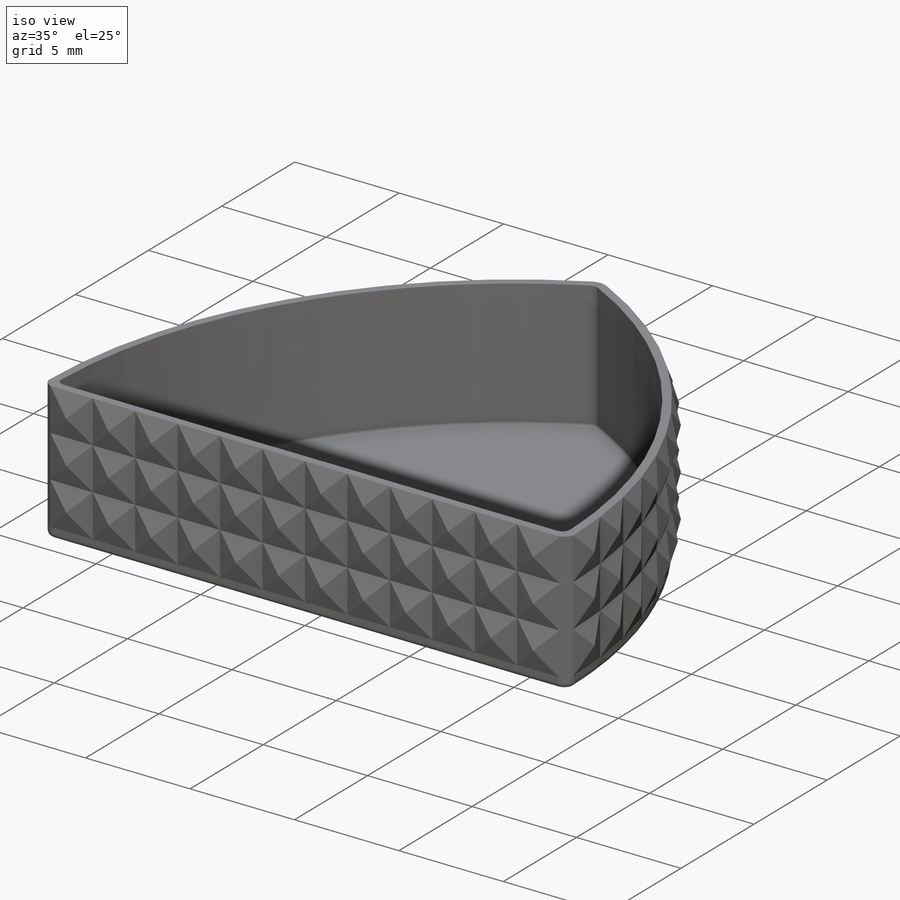
[diagram: iso view]
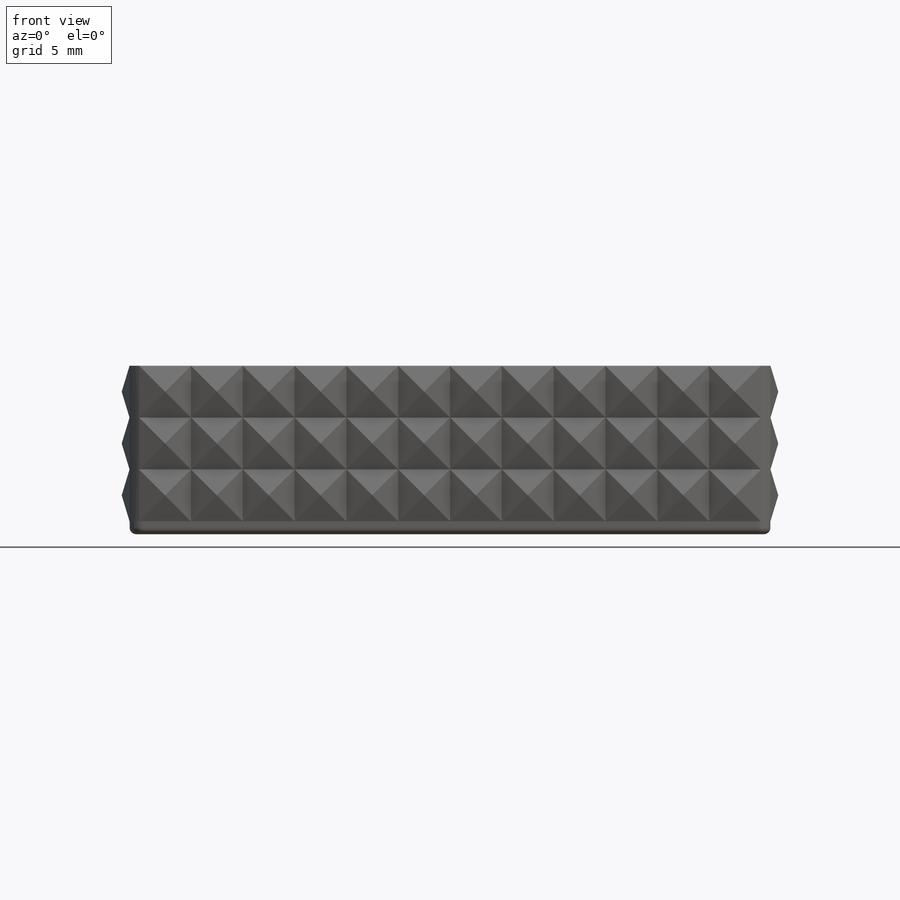
[diagram: front view]
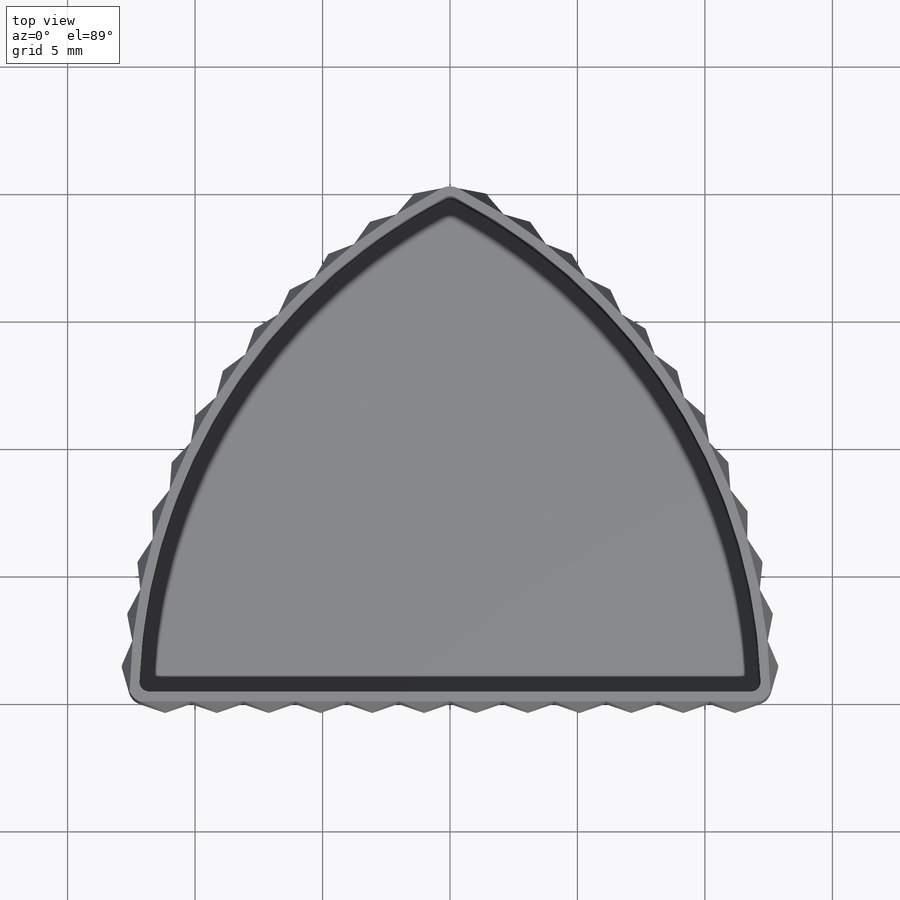
[diagram: top view]
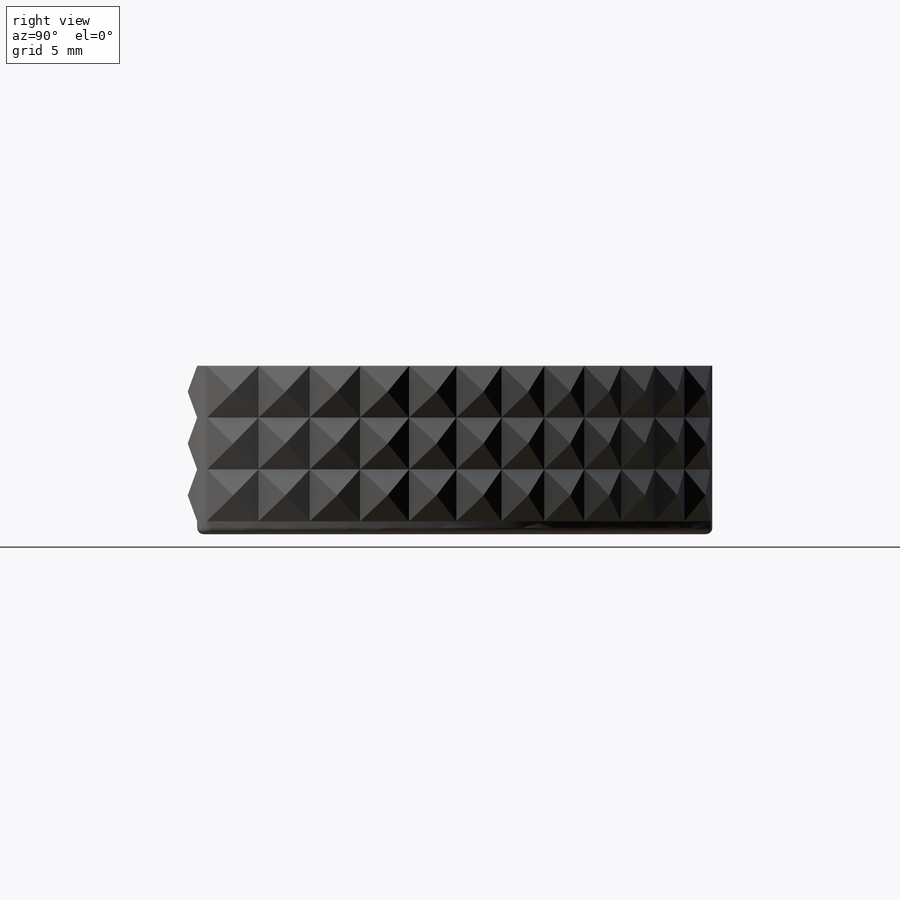
[diagram: right view]
SOLIDWORKS PART (.sldprt)
format: sldprt  version: not decoded by parser v0  size: 1,772,032 bytes
history: native  units: mm
features: sketch x15, surface_op x5, plane x4, move_body x3, extrude x2, pattern_linear x2, fillet x2, material x1, mirror x1 (+11 scaffold rows collapsed; 1 parser-record rows omitted)
feature tree (47):
  scaffold x11  (default folders/planes/origin — collapsed)
  material  "Material <not specified>"
  sketch  "base shape"  dims[c1.D2=38.1mm c1.D1=25.146mm c2.D2=38.1mm c2.D3=0.381mm c3.D2=25.146mm c3.D4=0.381mm]
  sketch  "3DSketch2"  dims[D1=0.381mm D2=~2.030893mm]
  sketch  "3DSketch3"
  extrude  "Boss-Extrude3"  Depth=2.54mm
  pattern_linear  "LPattern4"  Count1=3 Count2=1 Spacing1=2.54mm
  move_body  "Body-Move/Copy6"
  move_body  "Body-Move/Copy7"
  parser-record x1  (decoder bookkeeping rows leaked as tree rows — omitted from the tree; the rows remain in map.json)
  pattern_linear  "LPattern5"  Count1=6 Count2=1 Spacing1=2.032mm Spacing2=2.54mm
  mirror  "Mirror4"
  sketch  "Sketch2"  dims[D1=0.762mm D2=0.762mm]
  surface_op  "Surface-Extrude1"
  sketch  "Sketch4"  dims[D1=0.381mm]
  surface_op  "Surface-Extrude2"
  plane  "Plane1"
  sketch  "Sketch5"
  move_body  "Body-Move/Copy8"
  sketch  "Sketch6"  dims[D1=0.0mm]
  plane  "Plane2"  Offset=0.508mm
  sketch  "Sketch7"  dims[D1=0.508mm D2=0.508mm]
  extrude  "Boss-Extrude5"  [1 undecoded]
  fillet  "Fillet6"  Radius=0.254mm
  fillet  "Fillet7"  Radius=0.127mm
  sketch  "Sketch8"
  surface_op  "Surface-Extrude3"
  plane  "Plane3"  Offset=0.762mm
  sketch  "Sketch10"  dims[D1=0.0mm]
  sketch  "Sketch11"
  surface_op  "Surface-Extrude4"
  sketch  "Sketch9"  dims[D1=5.08mm D2=50.8mm]
  plane  "Plane4"
  sketch  "Sketch13"  dims[D1=7.62mm]
  sketch  "Sketch14"  dims[D1=3.175mm]
  sketch  "3DSketch4"
  surface_op  "Surface-Extrude5"
decode coverage: 15 of 30 modeling features carry decoded parameters
note: ~ marks probable driven/reference dimensions
note: 1 parameter value undecoded
note: suppression state not decoded; provenance and decode notes live in map.json
